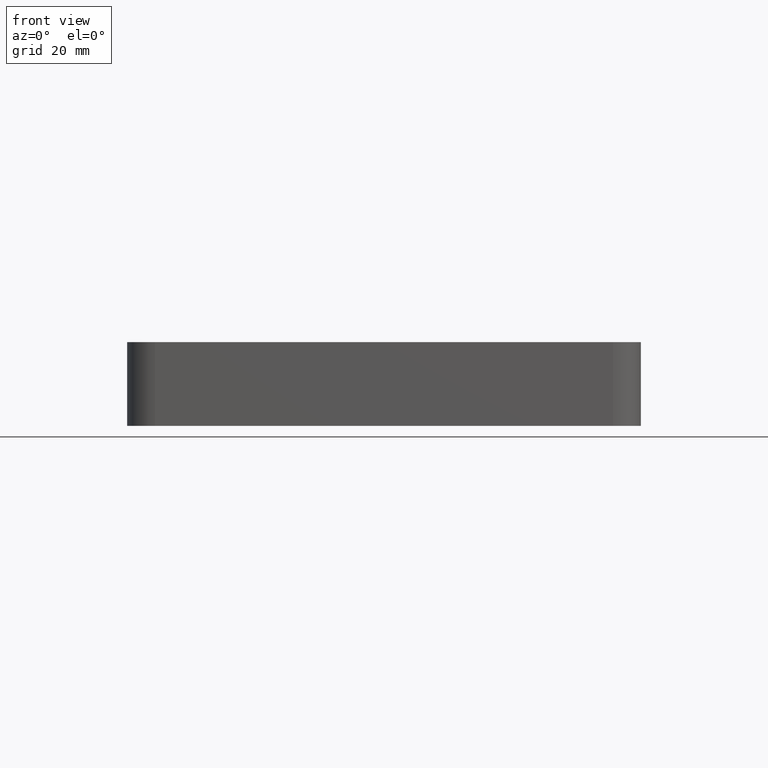
[diagram: clean part render]
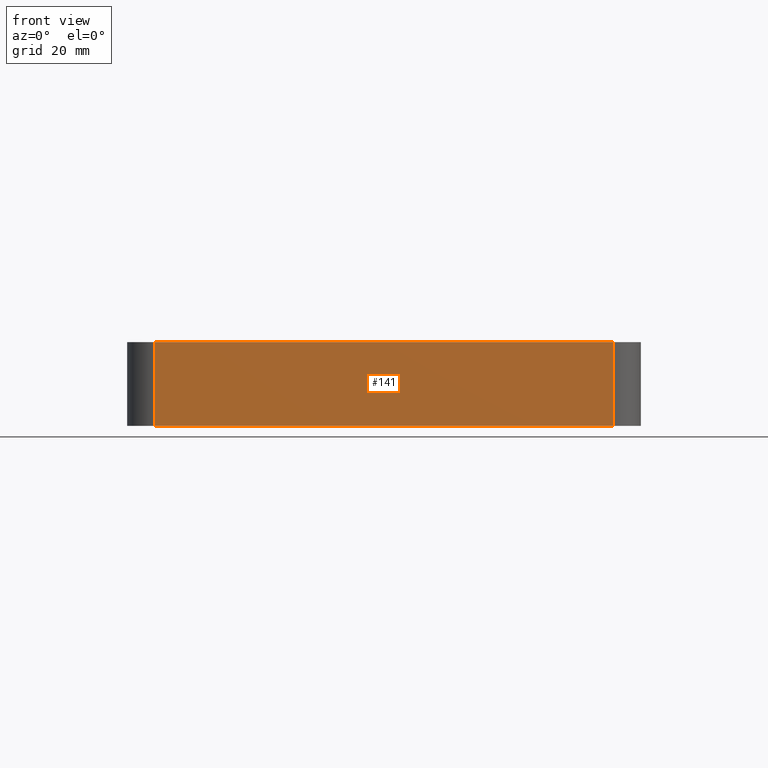
[diagram: same view with one face highlighted and labeled with its STEP entity id]
A machine part, front view. The second image highlights one B-rep face of the part: STEP entity #141.
In plain terms, the highlighted planar face has unit normal (0, -1, 0).
Its self-contained STEP definition (entity closure, byte-faithful):
#8 = EDGE_CURVE ( 'NONE', #148, #709, #396, .T. ) ;
#10 = ORIENTED_EDGE ( 'NONE', *, *, #691, .T. ) ;
#47 = CARTESIAN_POINT ( 'NONE',  ( -41.00000000000000000, -46.00000000000000711, -16.00000000000000000 ) ) ;
#52 = DIRECTION ( 'NONE',  ( -0.000000000000000000, -0.000000000000000000, -1.000000000000000000 ) ) ;
#88 = EDGE_CURVE ( 'NONE', #709, #334, #260, .T. ) ;
#94 = DIRECTION ( 'NONE',  ( 0.000000000000000000, -0.000000000000000000, -1.000000000000000000 ) ) ;
#101 = LINE ( 'NONE', #318, #528 ) ;
#116 = AXIS2_PLACEMENT_3D ( 'NONE', #554, #199, #94 ) ;
#140 = ORIENTED_EDGE ( 'NONE', *, *, #88, .T. ) ;
#141 = ADVANCED_FACE ( 'NONE', ( #544 ), #426, .T. ) ;
#142 = DIRECTION ( 'NONE',  ( 1.000000000000000000, 0.000000000000000000, 0.000000000000000000 ) ) ;
#148 = VERTEX_POINT ( 'NONE', #610 ) ;
#171 = EDGE_CURVE ( 'NONE', #148, #586, #101, .T. ) ;
#177 = CARTESIAN_POINT ( 'NONE',  ( -41.00000000000000000, -46.00000000000000711, -16.00000000000000000 ) ) ;
#199 = DIRECTION ( 'NONE',  ( 0.000000000000000000, -1.000000000000000000, 0.000000000000000000 ) ) ;
#203 = VECTOR ( 'NONE', #142, 1000.000000000000000 ) ;
#210 = LINE ( 'NONE', #581, #351 ) ;
#227 = DIRECTION ( 'NONE',  ( 0.000000000000000000, 0.000000000000000000, 1.000000000000000000 ) ) ;
#260 = LINE ( 'NONE', #613, #203 ) ;
#300 = EDGE_LOOP ( 'NONE', ( #10, #545, #479, #140 ) ) ;
#318 = CARTESIAN_POINT ( 'NONE',  ( -41.00000000000000000, -46.00000000000000711, -1.000000000000000000 ) ) ;
#334 = VERTEX_POINT ( 'NONE', #499 ) ;
#351 = VECTOR ( 'NONE', #227, 1000.000000000000000 ) ;
#396 = LINE ( 'NONE', #47, #630 ) ;
#426 = PLANE ( 'NONE',  #116 ) ;
#439 = CARTESIAN_POINT ( 'NONE',  ( 41.00000000000000711, -46.00000000000000711, -1.000000000000000000 ) ) ;
#479 = ORIENTED_EDGE ( 'NONE', *, *, #8, .T. ) ;
#499 = CARTESIAN_POINT ( 'NONE',  ( 41.00000000000000711, -46.00000000000000711, -16.00000000000000000 ) ) ;
#528 = VECTOR ( 'NONE', #664, 1000.000000000000000 ) ;
#544 = FACE_OUTER_BOUND ( 'NONE', #300, .T. ) ;
#545 = ORIENTED_EDGE ( 'NONE', *, *, #171, .F. ) ;
#554 = CARTESIAN_POINT ( 'NONE',  ( -46.00000000000000000, -46.00000000000000711, -16.00000000000000000 ) ) ;
#581 = CARTESIAN_POINT ( 'NONE',  ( 41.00000000000000711, -46.00000000000000711, -16.00000000000000000 ) ) ;
#586 = VERTEX_POINT ( 'NONE', #439 ) ;
#610 = CARTESIAN_POINT ( 'NONE',  ( -41.00000000000000000, -46.00000000000000711, -1.000000000000000000 ) ) ;
#613 = CARTESIAN_POINT ( 'NONE',  ( -46.00000000000000000, -46.00000000000000711, -16.00000000000000000 ) ) ;
#630 = VECTOR ( 'NONE', #52, 1000.000000000000000 ) ;
#664 = DIRECTION ( 'NONE',  ( 1.000000000000000000, 0.000000000000000000, 0.000000000000000000 ) ) ;
#691 = EDGE_CURVE ( 'NONE', #334, #586, #210, .T. ) ;
#709 = VERTEX_POINT ( 'NONE', #177 ) ;